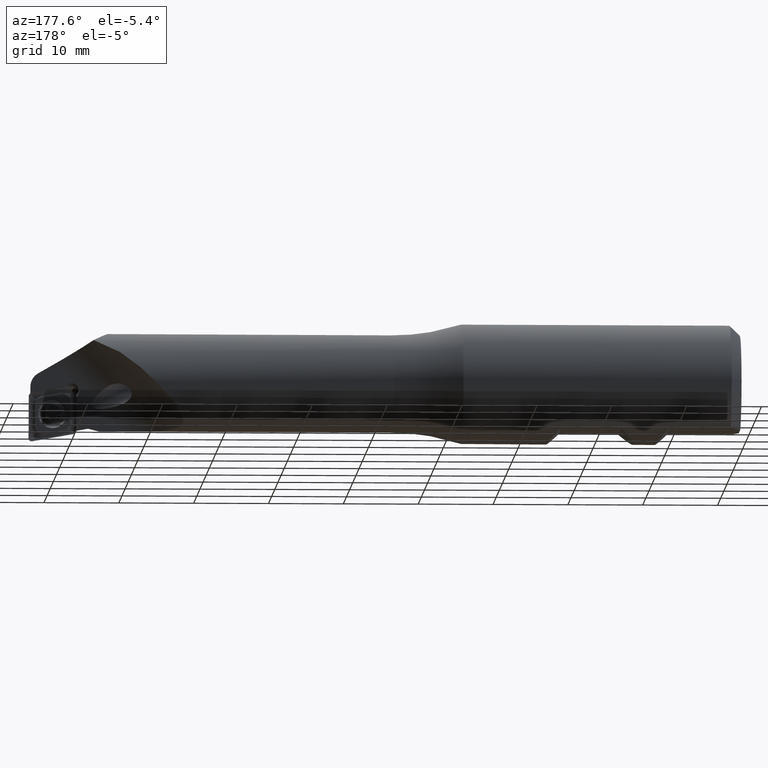
[diagram: clean part render]
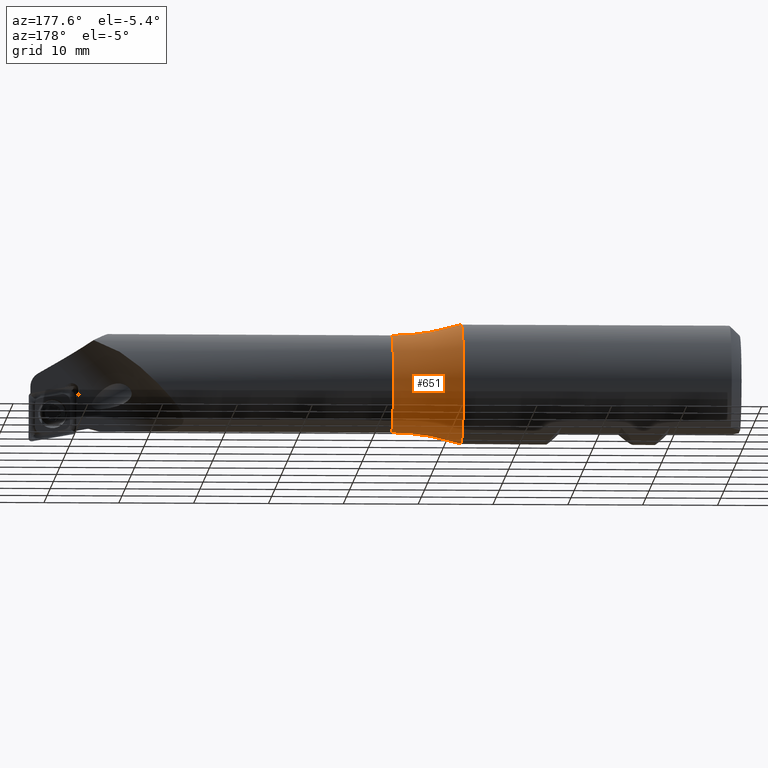
[diagram: same view with one face highlighted and labeled with its STEP entity id]
A machine part, auxiliary view. The second image highlights one B-rep face of the part: STEP entity #651.
In plain terms, the highlighted toroidal blend (fillet) surface has major radius 36.525 mm and minor (blend) radius 30 mm.
Its self-contained STEP definition (entity closure, byte-faithful):
#27 = AXIS2_PLACEMENT_3D ( 'NONE', #3396, #379, #113 ) ;
#42 = TOROIDAL_SURFACE ( 'NONE', #2932, 36.52499999999999900, 30.00000000000000000 ) ;
#113 = DIRECTION ( 'NONE',  ( 0.0000000000000000000, 0.0000000000000000000, 1.000000000000000000 ) ) ;
#376 = AXIS2_PLACEMENT_3D ( 'NONE', #2570, #1516, #406 ) ;
#379 = DIRECTION ( 'NONE',  ( -1.000000000000000000, -0.0000000000000000000, -0.0000000000000000000 ) ) ;
#406 = DIRECTION ( 'NONE',  ( 0.0000000000000000000, 0.0000000000000000000, 1.000000000000000000 ) ) ;
#444 = EDGE_CURVE ( 'NONE', #3481, #3481, #3382, .T. ) ;
#651 = ADVANCED_FACE ( 'NONE', ( #2270, #2184 ), #42, .F. ) ;
#1095 = CARTESIAN_POINT ( 'NONE',  ( 46.50000000000000000, 0.0000000000000000000, 0.0000000000000000000 ) ) ;
#1246 = EDGE_LOOP ( 'NONE', ( #3144 ) ) ;
#1471 = ORIENTED_EDGE ( 'NONE', *, *, #444, .T. ) ;
#1516 = DIRECTION ( 'NONE',  ( -1.000000000000000000, -0.0000000000000000000, -0.0000000000000000000 ) ) ;
#1634 = EDGE_CURVE ( 'NONE', #2061, #2061, #3141, .T. ) ;
#1649 = DIRECTION ( 'NONE',  ( -1.000000000000000000, -0.0000000000000000000, -0.0000000000000000000 ) ) ;
#2061 = VERTEX_POINT ( 'NONE', #3394 ) ;
#2184 = FACE_OUTER_BOUND ( 'NONE', #2876, .T. ) ;
#2270 = FACE_OUTER_BOUND ( 'NONE', #1246, .T. ) ;
#2570 = CARTESIAN_POINT ( 'NONE',  ( 46.49999999999998600, 0.0000000000000000000, 0.0000000000000000000 ) ) ;
#2876 = EDGE_LOOP ( 'NONE', ( #1471 ) ) ;
#2932 = AXIS2_PLACEMENT_3D ( 'NONE', #1095, #1649, #3553 ) ;
#3141 = CIRCLE ( 'NONE', #27, 8.000000000000000000 ) ;
#3144 = ORIENTED_EDGE ( 'NONE', *, *, #1634, .F. ) ;
#3382 = CIRCLE ( 'NONE', #376, 6.525000000000003000 ) ;
#3394 = CARTESIAN_POINT ( 'NONE',  ( 37.20890883695570000, 0.0000000000000000000, 8.000000000000000000 ) ) ;
#3396 = CARTESIAN_POINT ( 'NONE',  ( 37.20890883695570000, 0.0000000000000000000, 0.0000000000000000000 ) ) ;
#3408 = CARTESIAN_POINT ( 'NONE',  ( 46.49999999999998600, 0.0000000000000000000, 6.525000000000003000 ) ) ;
#3481 = VERTEX_POINT ( 'NONE', #3408 ) ;
#3553 = DIRECTION ( 'NONE',  ( 0.0000000000000000000, 0.0000000000000000000, 1.000000000000000000 ) ) ;